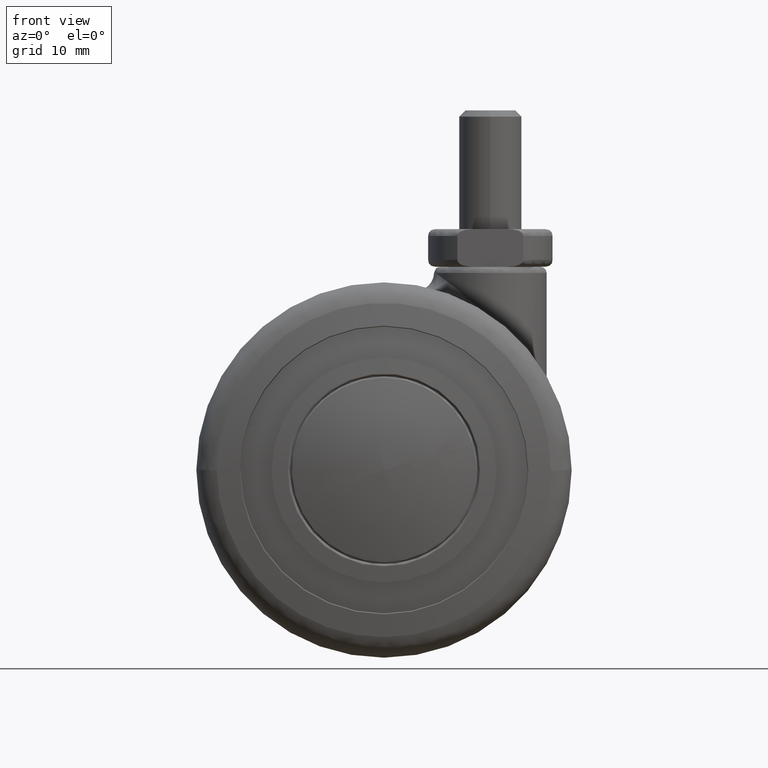
[diagram: clean part render]
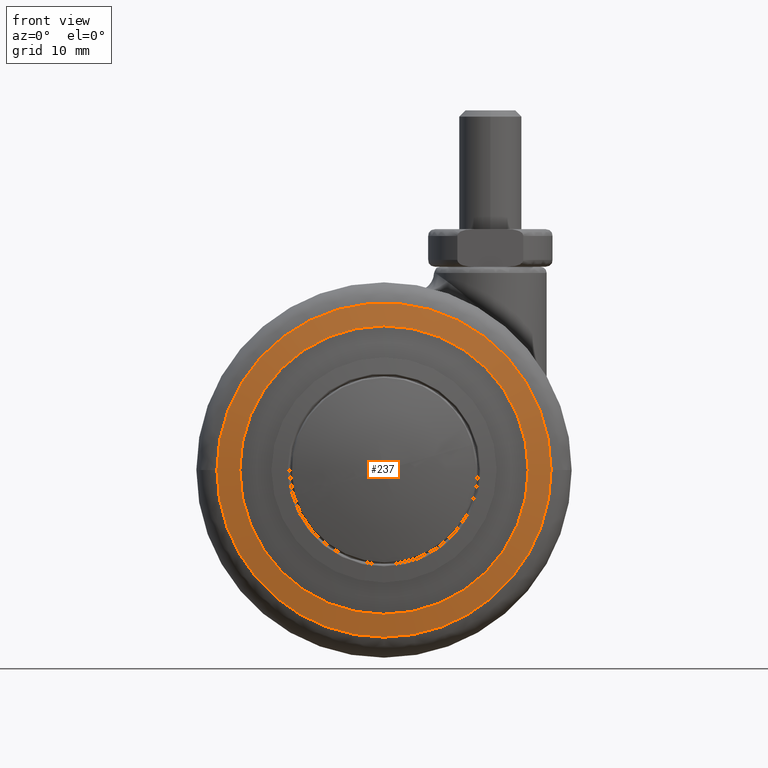
[diagram: same view with one face highlighted and labeled with its STEP entity id]
A machine part, front view. The second image highlights one B-rep face of the part: STEP entity #237.
In plain terms, the highlighted spherical surface has radius 150 mm.
Its self-contained STEP definition (entity closure, byte-faithful):
#237=ADVANCED_FACE('',(#1109,#1110),#1108,.T.);
#1108=SPHERICAL_SURFACE('',#3565,1.50000000000E+02);
#1109=FACE_OUTER_BOUND('',#3566,.T.);
#1110=FACE_BOUND('',#3567,.T.);
#3562=CARTESIAN_POINT('',(0.00000000000E+00,0.00000000000E+00,-1.35210000000E+02));
#3563=DIRECTION('',(-1.00000000000E+00,0.00000000000E+00,0.00000000000E+00));
#3564=DIRECTION('',(-0.00000000000E+00,-1.78082191781E-01,9.84015616223E-01));
#3565=AXIS2_PLACEMENT_3D('',#3562,#3563,#3564);
#3566=EDGE_LOOP('',(#4889,#4890,#4891));
#3567=EDGE_LOOP('',(#4892,#4893,#4894));
#4889=ORIENTED_EDGE('',*,*,#5433,.T.);
#4890=ORIENTED_EDGE('',*,*,#5434,.T.);
#4891=ORIENTED_EDGE('',*,*,#5435,.T.);
#4892=ORIENTED_EDGE('',*,*,#5436,.F.);
#4893=ORIENTED_EDGE('',*,*,#5437,.F.);
#4894=ORIENTED_EDGE('',*,*,#5438,.F.);
#5433=EDGE_CURVE('',#7002,#7003,#7004,.T.);
#5434=EDGE_CURVE('',#7003,#7010,#7011,.T.);
#5435=EDGE_CURVE('',#7010,#7002,#7017,.T.);
#5436=EDGE_CURVE('',#7023,#7024,#7025,.T.);
#5437=EDGE_CURVE('',#7031,#7023,#7032,.T.);
#5438=EDGE_CURVE('',#7024,#7031,#7038,.T.);
#7002=VERTEX_POINT('',#9221);
#7003=VERTEX_POINT('',#9222);
#7004=CIRCLE('',#9226,2.67123287671E+01);
#7010=VERTEX_POINT('',#9227);
#7011=CIRCLE('',#9231,2.67123287671E+01);
#7017=CIRCLE('',#9235,2.67123287671E+01);
#7023=VERTEX_POINT('',#9236);
#7024=VERTEX_POINT('',#9237);
#7025=CIRCLE('',#9241,2.30600000000E+01);
#7031=VERTEX_POINT('',#9242);
#7032=CIRCLE('',#9246,2.30600000000E+01);
#7038=CIRCLE('',#9250,2.30600000000E+01);
#9221=CARTESIAN_POINT('',(-1.43418453520E-15,-2.67123287671E+01,1.23923424334E+01));
#9222=CARTESIAN_POINT('',(2.67123287671E+01,-6.83950822632E-10,1.23923424334E+01));
#9223=CARTESIAN_POINT('',(0.00000000000E+00,0.00000000000E+00,1.23923424334E+01));
#9224=DIRECTION('',(-0.00000000000E+00,0.00000000000E+00,1.00000000000E+00));
#9225=DIRECTION('',(3.13691920983E-16,-1.00000000000E+00,0.00000000000E+00));
#9226=AXIS2_PLACEMENT_3D('',#9223,#9224,#9225);
#9227=CARTESIAN_POINT('',(-2.67123286233E+01,2.77215065779E-03,1.23923424334E+01));
#9228=CARTESIAN_POINT('',(0.00000000000E+00,0.00000000000E+00,1.23923424334E+01));
#9229=DIRECTION('',(-0.00000000000E+00,0.00000000000E+00,1.00000000000E+00));
#9230=DIRECTION('',(3.13691920983E-16,-1.00000000000E+00,0.00000000000E+00));
#9231=AXIS2_PLACEMENT_3D('',#9228,#9229,#9230);
#9232=CARTESIAN_POINT('',(0.00000000000E+00,0.00000000000E+00,1.23923424334E+01));
#9233=DIRECTION('',(-0.00000000000E+00,0.00000000000E+00,1.00000000000E+00));
#9234=DIRECTION('',(3.13691920983E-16,-1.00000000000E+00,0.00000000000E+00));
#9235=AXIS2_PLACEMENT_3D('',#9232,#9233,#9234);
#9236=CARTESIAN_POINT('',(2.30599998758E+01,-2.39318611887E-03,1.30068559915E+01));
#9237=CARTESIAN_POINT('',(7.05994889671E-15,2.30600000000E+01,1.30068559915E+01));
#9238=CARTESIAN_POINT('',(0.00000000000E+00,0.00000000000E+00,1.30068559915E+01));
#9239=DIRECTION('',(0.00000000000E+00,0.00000000000E+00,1.00000000000E+00));
#9240=DIRECTION('',(-6.12262731586E-17,1.00000000000E+00,0.00000000000E+00));
#9241=AXIS2_PLACEMENT_3D('',#9238,#9239,#9240);
#9242=CARTESIAN_POINT('',(-2.30600000000E+01,4.99496209898E-11,1.30068559915E+01));
#9243=CARTESIAN_POINT('',(0.00000000000E+00,0.00000000000E+00,1.30068559915E+01));
#9244=DIRECTION('',(0.00000000000E+00,0.00000000000E+00,1.00000000000E+00));
#9245=DIRECTION('',(-6.12262731586E-17,1.00000000000E+00,0.00000000000E+00));
#9246=AXIS2_PLACEMENT_3D('',#9243,#9244,#9245);
#9247=CARTESIAN_POINT('',(0.00000000000E+00,0.00000000000E+00,1.30068559915E+01));
#9248=DIRECTION('',(0.00000000000E+00,0.00000000000E+00,1.00000000000E+00));
#9249=DIRECTION('',(-6.12262731586E-17,1.00000000000E+00,0.00000000000E+00));
#9250=AXIS2_PLACEMENT_3D('',#9247,#9248,#9249);